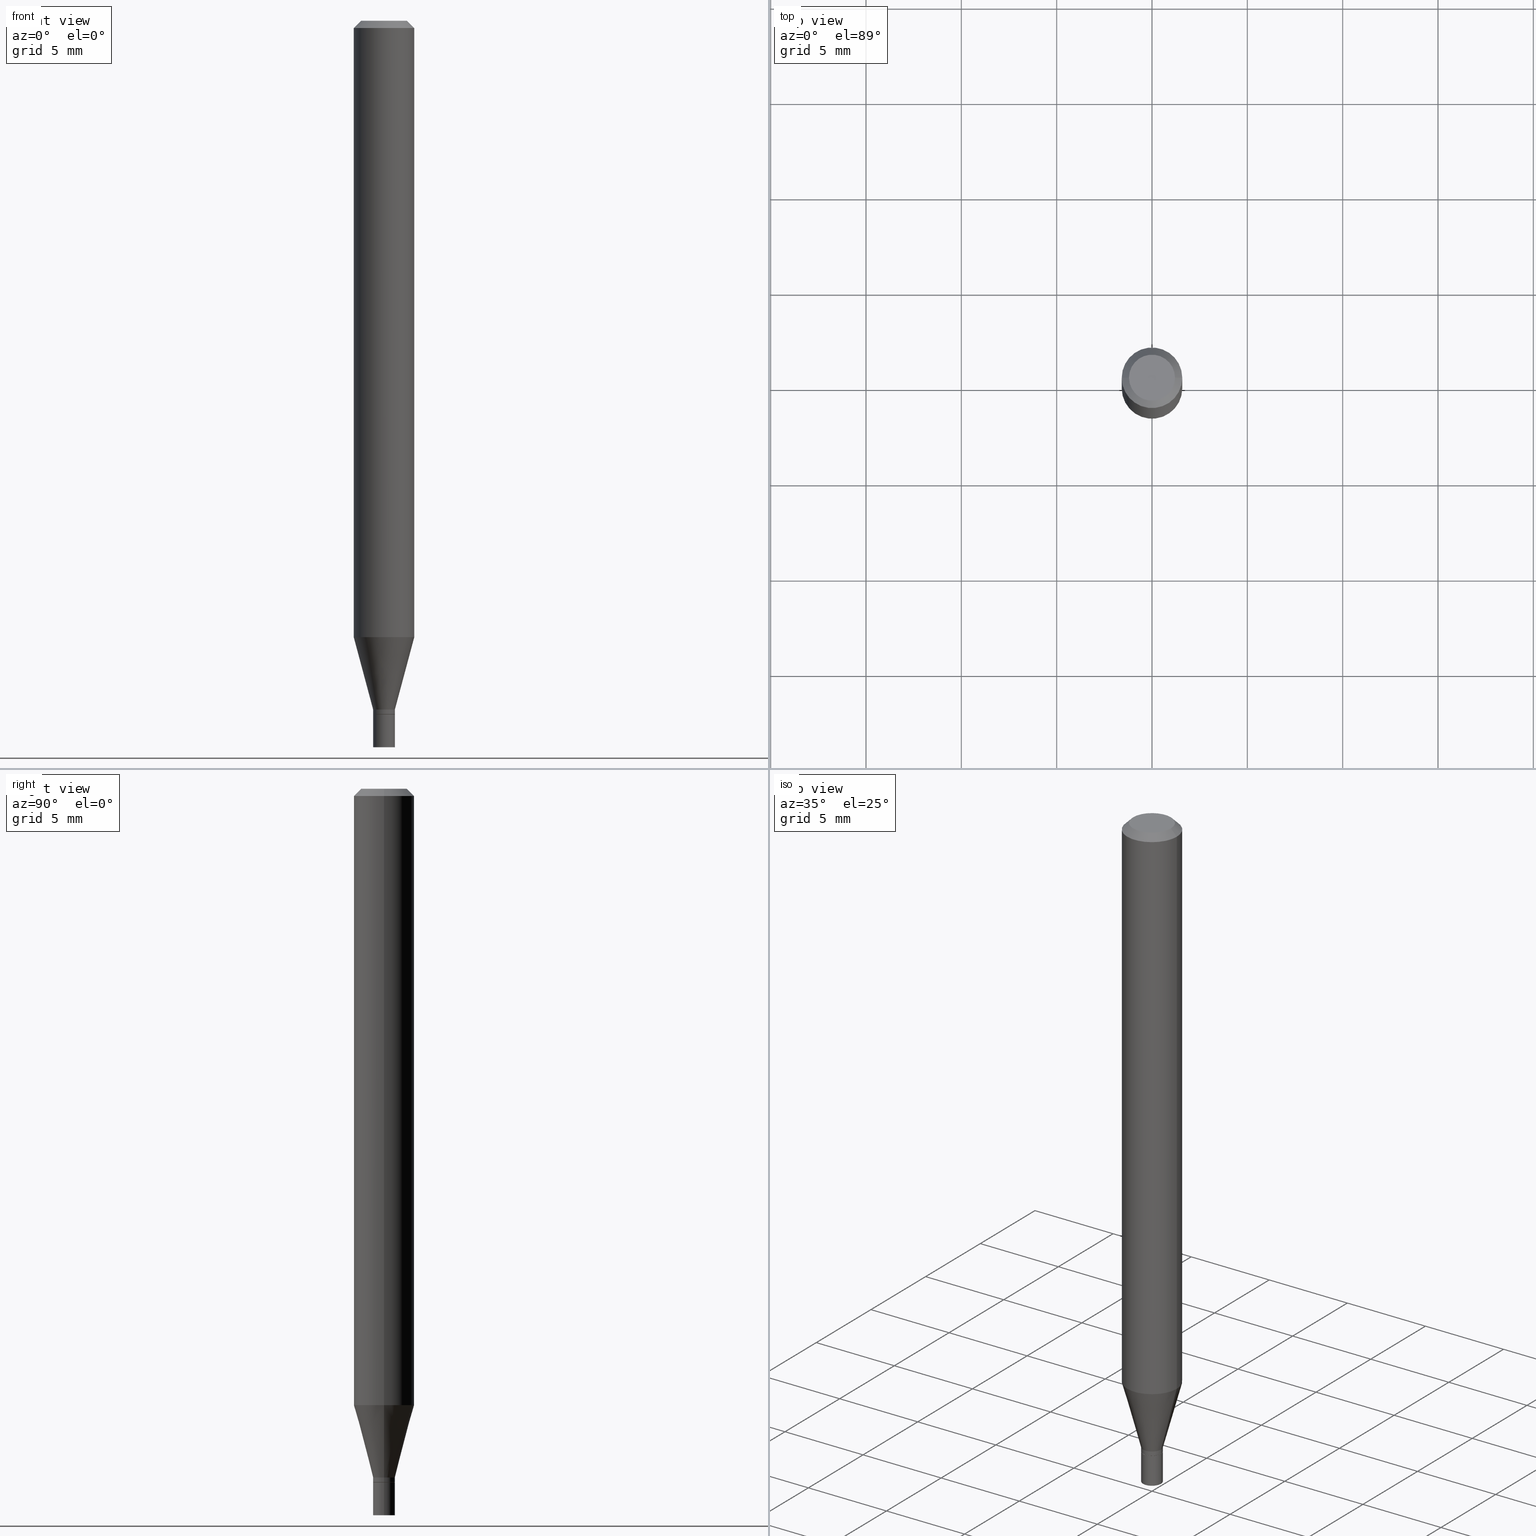
[diagram: canonical four-view strip — front | top / right | iso, engineering-drawing reading convention]
A machine part, canonical four-view strip (front | top / right | iso — engineering-drawing reading convention). The complete STEP part file that produces these views, byte-faithful:
ISO-10303-21;
HEADER;
FILE_DESCRIPTION (( 'STEP AP203' ),
    '1' );
FILE_NAME ('00341.STEP',
    '2024-03-19T21:00:36',
    ( '' ),
    ( '' ),
    'SwSTEP 2.0',
    'SolidWorks 2023',
    '' );
FILE_SCHEMA (( 'CONFIG_CONTROL_DESIGN' ));
ENDSEC;

DATA;
#1 = PERSON_AND_ORGANIZATION ( #202, #423 ) ;
#2 = CC_DESIGN_PERSON_AND_ORGANIZATION_ASSIGNMENT ( #274, #88, ( #276 ) ) ;
#3 = PERSON_AND_ORGANIZATION_ROLE ( 'design_supplier' ) ;
#4 = CARTESIAN_POINT ( 'NONE',  ( -0.02249999999999999917, -4.958639527198029700E-15, -1.500000000000000222 ) ) ;
#5 = FACE_OUTER_BOUND ( 'NONE', #369, .T. ) ;
#6 = VERTEX_POINT ( 'NONE', #66 ) ;
#7 = VECTOR ( 'NONE', #227, 39.37007874015748143 ) ;
#8 = EDGE_CURVE ( 'NONE', #273, #6, #182, .T. ) ;
#9 = VERTEX_POINT ( 'NONE', #458 ) ;
#10 = VERTEX_POINT ( 'NONE', #282 ) ;
#11 = CARTESIAN_POINT ( 'NONE',  ( -0.02249999999999992284, -4.805014348288931075E-15, -1.421999999999999931 ) ) ;
#12 = ORIENTED_EDGE ( 'NONE', *, *, #419, .T. ) ;
#13 = DIRECTION ( 'NONE',  ( 0.7071067811865656694, -2.468850131082446387E-15, 0.7071067811865294761 ) ) ;
#14 = ORIENTED_EDGE ( 'NONE', *, *, #443, .F. ) ;
#15 = ORIENTED_EDGE ( 'NONE', *, *, #443, .T. ) ;
#16 = CYLINDRICAL_SURFACE ( 'NONE', #307, 0.06250000000000000000 ) ;
#17 = ADVANCED_FACE ( 'NONE', ( #174 ), #35, .T. ) ;
#18 = DIRECTION ( 'NONE',  ( 1.000000000000000000, -6.982962677686248567E-15, 0.000000000000000000 ) ) ;
#19 = LOCAL_TIME ( 17, 0, 36.00000000000000000, #171 ) ;
#20 = CARTESIAN_POINT ( 'NONE',  ( 1.571166602479759968E-16, 0.02249999999999499969, -1.432000000000000162 ) ) ;
#21 = FACE_OUTER_BOUND ( 'NONE', #153, .T. ) ;
#22 = EDGE_LOOP ( 'NONE', ( #89, #184, #181, #428 ) ) ;
#23 = DIRECTION ( 'NONE',  ( 1.000000000000000000, -6.982962677686267499E-15, 4.852736867747366768E-29 ) ) ;
#24 = AXIS2_PLACEMENT_3D ( 'NONE', #170, #67, #221 ) ;
#25 = CIRCLE ( 'NONE', #278, 0.02249999999999999917 ) ;
#26 = DIRECTION ( 'NONE',  ( -2.438088387897960049E-29, 3.491481338843145188E-15, 1.000000000000000000 ) ) ;
#27 = DIRECTION ( 'NONE',  ( -2.445468806185136597E-29, 3.491481338843145583E-15, 1.000000000000000000 ) ) ;
#28 = ADVANCED_FACE ( 'NONE', ( #325 ), #56, .T. ) ;
#29 = LOCAL_TIME ( 17, 0, 36.00000000000000000, #391 ) ;
#30 = DIRECTION ( 'NONE',  ( 1.000000000000000000, -6.982962677686248567E-15, 0.000000000000000000 ) ) ;
#31 = EDGE_CURVE ( 'NONE', #81, #10, #341, .T. ) ;
#32 = DIRECTION ( 'NONE',  ( -2.445468806185136877E-29, 3.491481338843145188E-15, 1.000000000000000000 ) ) ;
#33 = DIRECTION ( 'NONE',  ( 1.000000000000000000, -6.982962677686248567E-15, 0.000000000000000000 ) ) ;
#34 = DIRECTION ( 'NONE',  ( -2.445468806185136877E-29, 3.491481338843145188E-15, 1.000000000000000000 ) ) ;
#35 = CYLINDRICAL_SURFACE ( 'NONE', #315, 0.02249999999999999917 ) ;
#36 = EDGE_CURVE ( 'NONE', #273, #313, #393, .T. ) ;
#37 = VECTOR ( 'NONE', #152, 39.37007874015748143 ) ;
#38 = CARTESIAN_POINT ( 'NONE',  ( 0.000000000000000000, 0.000000000000000000, 0.000000000000000000 ) ) ;
#39 = EDGE_CURVE ( 'NONE', #72, #48, #222, .T. ) ;
#40 = ORIENTED_EDGE ( 'NONE', *, *, #291, .F. ) ;
#41 = DIRECTION ( 'NONE',  ( -2.445468806185136597E-29, 3.491481338843145583E-15, 1.000000000000000000 ) ) ;
#42 = AXIS2_PLACEMENT_3D ( 'NONE', #216, #130, #33 ) ;
#43 = AXIS2_PLACEMENT_3D ( 'NONE', #366, #51, #195 ) ;
#44 = DIRECTION ( 'NONE',  ( -2.445468806185136597E-29, 3.491481338843145583E-15, 1.000000000000000000 ) ) ;
#45 = CONICAL_SURFACE ( 'NONE', #317, 0.06250000000000000000, 0.7853981633974405074 ) ;
#46 = DIRECTION ( 'NONE',  ( -2.445468806185136597E-29, 3.491481338843145583E-15, 1.000000000000000000 ) ) ;
#47 = CARTESIAN_POINT ( 'NONE',  ( 0.02199999999999999872, -5.153426456132482850E-15, -1.432000000000000162 ) ) ;
#48 = VERTEX_POINT ( 'NONE', #70 ) ;
#49 = ORIENTED_EDGE ( 'NONE', *, *, #403, .F. ) ;
#50 = LINE ( 'NONE', #47, #79 ) ;
#51 = DIRECTION ( 'NONE',  ( -2.445468806185136597E-29, 3.491481338843145583E-15, 1.000000000000000000 ) ) ;
#52 = LINE ( 'NONE', #197, #255 ) ;
#53 = EDGE_LOOP ( 'NONE', ( #297, #15, #440, #245 ) ) ;
#54 = ADVANCED_FACE ( 'NONE', ( #5 ), #145, .T. ) ;
#55 = DIRECTION ( 'NONE',  ( 1.000000000000000000, -6.982962677686265922E-15, 4.876176775795935793E-29 ) ) ;
#56 = CONICAL_SURFACE ( 'NONE', #177, 0.02199999999999999872, 0.7853981633974739252 ) ;
#57 =( GEOMETRIC_REPRESENTATION_CONTEXT ( 3 ) GLOBAL_UNCERTAINTY_ASSIGNED_CONTEXT ( ( #108 ) ) GLOBAL_UNIT_ASSIGNED_CONTEXT ( ( #217, #275, #141 ) ) REPRESENTATION_CONTEXT ( 'NONE', 'WORKASPACE' ) );
#58 = ORIENTED_EDGE ( 'NONE', *, *, #119, .F. ) ;
#59 = EDGE_CURVE ( 'NONE', #313, #48, #435, .T. ) ;
#60 = DIRECTION ( 'NONE',  ( -2.445468806185136877E-29, 3.491481338843145188E-15, 1.000000000000000000 ) ) ;
#61 = APPLICATION_CONTEXT ( 'configuration controlled 3d designs of mechanical parts and assemblies' ) ;
#62 = CARTESIAN_POINT ( 'NONE',  ( 0.02249999999999999917, -1.571166602479409911E-16, 1.097139774554085483E-30 ) ) ;
#63 = CONICAL_SURFACE ( 'NONE', #439, 0.02249999999999992284, 0.2617993877991492413 ) ;
#64 = DATE_TIME_ROLE ( 'classification_date' ) ;
#65 = AXIS2_PLACEMENT_3D ( 'NONE', #189, #362, #116 ) ;
#66 = CARTESIAN_POINT ( 'NONE',  ( 0.02249999999999992284, -5.122003124082893419E-15, -1.421999999999999931 ) ) ;
#67 = DIRECTION ( 'NONE',  ( 2.445468806185136597E-29, -3.491481338843145583E-15, -1.000000000000000000 ) ) ;
#68 = CLOSED_SHELL ( 'NONE', ( #17, #211, #155, #166 ) ) ;
#69 = DIRECTION ( 'NONE',  ( -2.438088387897960049E-29, 3.491481338843145188E-15, 1.000000000000000000 ) ) ;
#70 = CARTESIAN_POINT ( 'NONE',  ( -0.06250000000000000000, -1.803932417103912611E-15, -0.01499999999999999944 ) ) ;
#71 = ADVANCED_FACE ( 'NONE', ( #106 ), #378, .T. ) ;
#72 = VERTEX_POINT ( 'NONE', #316 ) ;
#73 = DIRECTION ( 'NONE',  ( -2.445468806185136597E-29, 3.491481338843145583E-15, 1.000000000000000000 ) ) ;
#74 = CIRCLE ( 'NONE', #268, 0.04749999999999999362 ) ;
#75 = EDGE_CURVE ( 'NONE', #9, #273, #352, .T. ) ;
#76 = ORIENTED_EDGE ( 'NONE', *, *, #403, .T. ) ;
#77 = LINE ( 'NONE', #234, #230 ) ;
#78 = ORIENTED_EDGE ( 'NONE', *, *, #330, .T. ) ;
#79 = VECTOR ( 'NONE', #13, 39.37007874015748143 ) ;
#80 = CARTESIAN_POINT ( 'NONE',  ( 3.501911330457115844E-29, -4.999801277223385014E-15, -1.432000000000000162 ) ) ;
#81 = VERTEX_POINT ( 'NONE', #133 ) ;
#82 = PLANE ( 'NONE',  #161 ) ;
#83 = ORIENTED_EDGE ( 'NONE', *, *, #198, .T. ) ;
#84 = DIRECTION ( 'NONE',  ( 1.000000000000000000, -6.982962677686267499E-15, 4.852736867747366768E-29 ) ) ;
#85 = DIRECTION ( 'NONE',  ( -2.445468806185136597E-29, 3.491481338843145583E-15, 1.000000000000000000 ) ) ;
#86 = ORIENTED_EDGE ( 'NONE', *, *, #329, .F. ) ;
#87 = LINE ( 'NONE', #237, #434 ) ;
#88 = PERSON_AND_ORGANIZATION_ROLE ( 'design_owner' ) ;
#89 = ORIENTED_EDGE ( 'NONE', *, *, #260, .F. ) ;
#90 = LOCAL_TIME ( 17, 0, 36.00000000000000000, #137 ) ;
#91 = CC_DESIGN_DATE_AND_TIME_ASSIGNMENT ( #319, #64, ( #290 ) ) ;
#92 = DIRECTION ( 'NONE',  ( -2.445468806185136597E-29, 3.491481338843145583E-15, 1.000000000000000000 ) ) ;
#93 = DIRECTION ( 'NONE',  ( -2.445468806185136597E-29, 3.491481338843145583E-15, 1.000000000000000000 ) ) ;
#94 = ADVANCED_FACE ( 'NONE', ( #292 ), #140, .T. ) ;
#95 = AXIS2_PLACEMENT_3D ( 'NONE', #156, #73, #304 ) ;
#96 = DIRECTION ( 'NONE',  ( -2.445468806185136597E-29, 3.491481338843145583E-15, 1.000000000000000000 ) ) ;
#97 = SECURITY_CLASSIFICATION_LEVEL ( 'unclassified' ) ;
#98 = CARTESIAN_POINT ( 'NONE',  ( 0.06250000000000000000, -4.888073874380388472E-16, -0.01499999999999999944 ) ) ;
#99 = EDGE_LOOP ( 'NONE', ( #120, #115, #422, #302 ) ) ;
#100 = APPROVAL_DATE_TIME ( #430, #394 ) ;
#101 = VERTEX_POINT ( 'NONE', #98 ) ;
#102 = AXIS2_PLACEMENT_3D ( 'NONE', #336, #242, #372 ) ;
#103 = APPROVAL_ROLE ( '' ) ;
#104 = ADVANCED_FACE ( 'NONE', ( #107 ), #63, .T. ) ;
#105 = DESIGN_CONTEXT ( 'detailed design', #160, 'design' ) ;
#106 = FACE_OUTER_BOUND ( 'NONE', #363, .T. ) ;
#107 = FACE_OUTER_BOUND ( 'NONE', #296, .T. ) ;
#108 = UNCERTAINTY_MEASURE_WITH_UNIT (LENGTH_MEASURE( 1.000000000000000082E-05 ), #217, 'distance_accuracy_value', 'NONE');
#109 = CIRCLE ( 'NONE', #183, 0.02249999999999999917 ) ;
#110 = CARTESIAN_POINT ( 'NONE',  ( 0.02249999999999999917, -5.394338668512659809E-15, -1.500000000000000222 ) ) ;
#111 = AXIS2_PLACEMENT_3D ( 'NONE', #229, #154, #84 ) ;
#112 = CARTESIAN_POINT ( 'NONE',  ( 0.02249999999999999917, -5.156917937471325857E-15, -1.432000000000000162 ) ) ;
#113 = DIRECTION ( 'NONE',  ( 2.438088387897960049E-29, -3.491481338843145188E-15, -1.000000000000000000 ) ) ;
#114 = DIRECTION ( 'NONE',  ( 1.000000000000000000, -6.982962677686245411E-15, 0.000000000000000000 ) ) ;
#115 = ORIENTED_EDGE ( 'NONE', *, *, #249, .T. ) ;
#116 = DIRECTION ( 'NONE',  ( 1.000000000000000000, 0.000000000000000000, 0.000000000000000000 ) ) ;
#117 = DIRECTION ( 'NONE',  ( -1.000000000000000000, 6.982962677686266711E-15, 0.000000000000000000 ) ) ;
#118 = AXIS2_PLACEMENT_3D ( 'NONE', #416, #92, #379 ) ;
#119 = EDGE_CURVE ( 'NONE', #266, #331, #384, .T. ) ;
#120 = ORIENTED_EDGE ( 'NONE', *, *, #75, .F. ) ;
#121 = APPROVAL_PERSON_ORGANIZATION ( #318, #394, #210 ) ;
#122 = DIRECTION ( 'NONE',  ( -2.445468806185136597E-29, 3.491481338843145583E-15, 1.000000000000000000 ) ) ;
#123 = ORIENTED_EDGE ( 'NONE', *, *, #415, .T. ) ;
#124 = EDGE_CURVE ( 'NONE', #6, #273, #360, .T. ) ;
#125 = EDGE_LOOP ( 'NONE', ( #86, #209 ) ) ;
#126 = AXIS2_PLACEMENT_3D ( 'NONE', #262, #69, #223 ) ;
#127 =( LENGTH_UNIT ( ) NAMED_UNIT ( * ) SI_UNIT ( $, .METRE. ) );
#128 = FACE_OUTER_BOUND ( 'NONE', #146, .T. ) ;
#129 = CALENDAR_DATE ( 2024, 19, 3 ) ;
#130 = DIRECTION ( 'NONE',  ( -2.445468806185136597E-29, 3.491481338843145583E-15, 1.000000000000000000 ) ) ;
#131 = PERSON_AND_ORGANIZATION_ROLE ( 'creator' ) ;
#132 = CIRCLE ( 'NONE', #207, 0.06250000000000000000 ) ;
#133 = CARTESIAN_POINT ( 'NONE',  ( -0.02199999999999999872, -4.840832648182052422E-15, -1.432000000000000162 ) ) ;
#134 = APPROVAL_DATE_TIME ( #347, #351 ) ;
#135 = MECHANICAL_CONTEXT ( 'NONE', #61, 'mechanical' ) ;
#136 = CARTESIAN_POINT ( 'NONE',  ( -0.02249999999999992284, 1.598721155460219936E-16, -1.106760395307350101E-30 ) ) ;
#137 = COORDINATED_UNIVERSAL_TIME_OFFSET ( 5, 0, .BEHIND. ) ;
#138 = CARTESIAN_POINT ( 'NONE',  ( -0.02249999999999992284, -4.402298086132085720E-15, -1.421999999999999931 ) ) ;
#139 = DIRECTION ( 'NONE',  ( 1.000000000000000000, -6.982962677686265922E-15, 4.876176775795935793E-29 ) ) ;
#140 = CONICAL_SURFACE ( 'NONE', #147, 0.02199999999999999872, 0.7853981633974739252 ) ;
#141 =( NAMED_UNIT ( * ) SI_UNIT ( $, .STERADIAN. ) SOLID_ANGLE_UNIT ( ) );
#142 = AXIS2_PLACEMENT_3D ( 'NONE', #80, #122, #448 ) ;
#143 = FACE_OUTER_BOUND ( 'NONE', #125, .T. ) ;
#144 = ORIENTED_EDGE ( 'NONE', *, *, #256, .T. ) ;
#145 = CYLINDRICAL_SURFACE ( 'NONE', #322, 0.02249999999999992284 ) ;
#146 = EDGE_LOOP ( 'NONE', ( #218, #457, #226, #309 ) ) ;
#147 = AXIS2_PLACEMENT_3D ( 'NONE', #285, #436, #427 ) ;
#148 = DIRECTION ( 'NONE',  ( 1.000000000000000000, -6.982962677686245411E-15, 0.000000000000000000 ) ) ;
#149 = ADVANCED_FACE ( 'NONE', ( #399 ), #82, .F. ) ;
#150 = EDGE_LOOP ( 'NONE', ( #382, #299 ) ) ;
#151 = ORIENTED_EDGE ( 'NONE', *, *, #438, .F. ) ;
#152 = DIRECTION ( 'NONE',  ( -0.2588190451025205729, 5.211531920934545520E-15, 0.9659258262890684232 ) ) ;
#153 = EDGE_LOOP ( 'NONE', ( #402, #144, #258, #340 ) ) ;
#154 = DIRECTION ( 'NONE',  ( -2.445468806185136597E-29, 3.491481338843145583E-15, 1.000000000000000000 ) ) ;
#155 = ADVANCED_FACE ( 'NONE', ( #295 ), #233, .T. ) ;
#156 = CARTESIAN_POINT ( 'NONE',  ( 3.668203209277704895E-29, -5.237222008264718177E-15, -1.500000000000000222 ) ) ;
#157 = AXIS2_PLACEMENT_3D ( 'NONE', #420, #344, #417 ) ;
#158 = PERSON_AND_ORGANIZATION ( #202, #423 ) ;
#159 = VERTEX_POINT ( 'NONE', #305 ) ;
#160 = APPLICATION_CONTEXT ( 'configuration controlled 3d designs of mechanical parts and assemblies' ) ;
#161 = AXIS2_PLACEMENT_3D ( 'NONE', #224, #113, #326 ) ;
#162 = CYLINDRICAL_SURFACE ( 'NONE', #157, 0.06250000000000000000 ) ;
#163 = DIRECTION ( 'NONE',  ( -2.445468806185136597E-29, 3.491481338843145583E-15, 1.000000000000000000 ) ) ;
#164 = APPROVAL_ROLE ( '' ) ;
#165 = CARTESIAN_POINT ( 'NONE',  ( 0.06250000000000000000, -4.880106201180694651E-15, -1.272717967697244434 ) ) ;
#166 = ADVANCED_FACE ( 'NONE', ( #449 ), #199, .F. ) ;
#167 = APPLICATION_PROTOCOL_DEFINITION ( 'international standard', 'config_control_design', 1994, #61 ) ;
#168 = CARTESIAN_POINT ( 'NONE',  ( 3.668203209277705088E-31, -5.237222008264718399E-17, -0.01499999999999999944 ) ) ;
#169 = PERSON_AND_ORGANIZATION_ROLE ( 'classification_officer' ) ;
#170 = CARTESIAN_POINT ( 'NONE',  ( 3.668203209277705088E-31, -5.237222008264718399E-17, -0.01499999999999999944 ) ) ;
#171 = COORDINATED_UNIVERSAL_TIME_OFFSET ( 5, 0, .BEHIND. ) ;
#172 = EDGE_CURVE ( 'NONE', #462, #331, #109, .T. ) ;
#173 = VERTEX_POINT ( 'NONE', #165 ) ;
#174 = FACE_OUTER_BOUND ( 'NONE', #453, .T. ) ;
#175 = LINE ( 'NONE', #280, #186 ) ;
#176 = APPROVAL_DATE_TIME ( #250, #390 ) ;
#177 = AXIS2_PLACEMENT_3D ( 'NONE', #179, #293, #148 ) ;
#178 = LOCAL_TIME ( 17, 0, 36.00000000000000000, #353 ) ;
#179 = CARTESIAN_POINT ( 'NONE',  ( 3.501911330457115844E-29, -4.999801277223385014E-15, -1.432000000000000162 ) ) ;
#180 = ORIENTED_EDGE ( 'NONE', *, *, #249, .F. ) ;
#181 = ORIENTED_EDGE ( 'NONE', *, *, #119, .T. ) ;
#182 = CIRCLE ( 'NONE', #42, 0.02249999999999992284 ) ;
#183 = AXIS2_PLACEMENT_3D ( 'NONE', #371, #93, #375 ) ;
#184 = ORIENTED_EDGE ( 'NONE', *, *, #438, .T. ) ;
#185 = CIRCLE ( 'NONE', #381, 0.02249999999999992284 ) ;
#186 = VECTOR ( 'NONE', #60, 39.37007874015748143 ) ;
#187 = ORIENTED_EDGE ( 'NONE', *, *, #188, .F. ) ;
#188 = EDGE_CURVE ( 'NONE', #159, #72, #74, .T. ) ;
#189 = CARTESIAN_POINT ( 'NONE',  ( 0.000000000000000000, 0.000000000000000000, 0.000000000000000000 ) ) ;
#190 = FACE_OUTER_BOUND ( 'NONE', #236, .T. ) ;
#191 = ORIENTED_EDGE ( 'NONE', *, *, #357, .F. ) ;
#192 = EDGE_LOOP ( 'NONE', ( #123, #398, #49, #40 ) ) ;
#193 = CARTESIAN_POINT ( 'NONE',  ( 0.02249999999999992284, -5.155172196801903565E-15, -1.431500000000000217 ) ) ;
#194 = CARTESIAN_POINT ( 'NONE',  ( 0.06250000000000000000, -4.364351673553916694E-16, 3.047610484872459871E-30 ) ) ;
#195 = DIRECTION ( 'NONE',  ( 1.000000000000000000, -6.982962677686266711E-15, 4.876176775795935793E-29 ) ) ;
#196 = DIRECTION ( 'NONE',  ( -2.445468806185136597E-29, 3.491481338843145583E-15, 1.000000000000000000 ) ) ;
#197 = CARTESIAN_POINT ( 'NONE',  ( -0.02199999999999999872, -4.843481875356163623E-15, -1.432000000000000162 ) ) ;
#198 = EDGE_CURVE ( 'NONE', #48, #101, #414, .T. ) ;
#199 = PLANE ( 'NONE',  #446 ) ;
#200 = DIRECTION ( 'NONE',  ( 1.000000000000000000, -6.982962677686248567E-15, 0.000000000000000000 ) ) ;
#201 = ORIENTED_EDGE ( 'NONE', *, *, #31, .T. ) ;
#202 = PERSON ( 'UNSPECIFIED', 'UNSPECIFIED', 'UNSPECIFIED', ('UNSPECIFIED'), ('UNSPECIFIED'), ('UNSPECIFIED') ) ;
#203 = APPROVAL_PERSON_ORGANIZATION ( #214, #390, #103 ) ;
#204 = CARTESIAN_POINT ( 'NONE',  ( -5.723698685194923234E-45, 8.171924785126947293E-31, 2.340532281875119882E-16 ) ) ;
#205 = AXIS2_PLACEMENT_3D ( 'NONE', #431, #349, #30 ) ;
#206 = CC_DESIGN_PERSON_AND_ORGANIZATION_ASSIGNMENT ( #346, #169, ( #290 ) ) ;
#207 = AXIS2_PLACEMENT_3D ( 'NONE', #247, #96, #464 ) ;
#208 = FACE_OUTER_BOUND ( 'NONE', #248, .T. ) ;
#209 = ORIENTED_EDGE ( 'NONE', *, *, #31, .F. ) ;
#210 = APPROVAL_ROLE ( '' ) ;
#211 = ADVANCED_FACE ( 'NONE', ( #208 ), #244, .F. ) ;
#212 = CONICAL_SURFACE ( 'NONE', #303, 0.02249999999999992284, 0.2617993877991492413 ) ;
#213 = DIRECTION ( 'NONE',  ( -2.445468806185136877E-29, 3.491481338843145188E-15, 1.000000000000000000 ) ) ;
#214 = PERSON_AND_ORGANIZATION ( #202, #423 ) ;
#215 = CIRCLE ( 'NONE', #111, 0.04749999999999999362 ) ;
#216 = CARTESIAN_POINT ( 'NONE',  ( 3.477456642395264859E-29, -4.964886463834953365E-15, -1.421999999999999931 ) ) ;
#217 =( CONVERSION_BASED_UNIT ( 'INCH', #277 ) LENGTH_UNIT ( ) NAMED_UNIT ( #380 ) );
#218 = ORIENTED_EDGE ( 'NONE', *, *, #36, .F. ) ;
#219 = SHAPE_DEFINITION_REPRESENTATION ( #406, #263 ) ;
#220 = DIRECTION ( 'NONE',  ( -2.445468806185136597E-29, 3.491481338843145583E-15, 1.000000000000000000 ) ) ;
#221 = DIRECTION ( 'NONE',  ( -1.000000000000000000, 6.982962677686266711E-15, 0.000000000000000000 ) ) ;
#222 = LINE ( 'NONE', #356, #348 ) ;
#223 = DIRECTION ( 'NONE',  ( 1.000000000000000000, -6.982962677686265922E-15, 4.876176775795935793E-29 ) ) ;
#224 = CARTESIAN_POINT ( 'NONE',  ( 3.316907271900976096E-16, 0.04749999999999999362, -4.881874950129340235E-17 ) ) ;
#225 = DIRECTION ( 'NONE',  ( -2.445468806185136597E-29, 3.491481338843145583E-15, 1.000000000000000000 ) ) ;
#226 = ORIENTED_EDGE ( 'NONE', *, *, #357, .T. ) ;
#227 = DIRECTION ( 'NONE',  ( -2.445468806185136877E-29, 3.491481338843145188E-15, 1.000000000000000000 ) ) ;
#228 = ADVANCED_FACE ( 'NONE', ( #128 ), #212, .T. ) ;
#229 = CARTESIAN_POINT ( 'NONE',  ( -5.723698685194923234E-45, 8.171924785126947293E-31, 2.340532281875119882E-16 ) ) ;
#230 = VECTOR ( 'NONE', #231, 39.37007874015748143 ) ;
#231 = DIRECTION ( 'NONE',  ( 0.7071067811865420216, -7.319954787623237113E-15, -0.7071067811865530128 ) ) ;
#232 = CARTESIAN_POINT ( 'NONE',  ( 0.000000000000000000, 0.000000000000000000, 0.000000000000000000 ) ) ;
#233 = CYLINDRICAL_SURFACE ( 'NONE', #43, 0.02249999999999999917 ) ;
#234 = CARTESIAN_POINT ( 'NONE',  ( 0.06250000000000000000, -4.811533449433679005E-16, -0.01499999999999999944 ) ) ;
#235 = CC_DESIGN_PERSON_AND_ORGANIZATION_ASSIGNMENT ( #1, #131, ( #442 ) ) ;
#236 = EDGE_LOOP ( 'NONE', ( #187, #373, #76, #359 ) ) ;
#237 = CARTESIAN_POINT ( 'NONE',  ( 0.02249999999999992284, -5.122003124082893419E-15, -1.421999999999999931 ) ) ;
#238 = CARTESIAN_POINT ( 'NONE',  ( 3.500688596054023603E-29, -4.998055536553963510E-15, -1.431500000000000217 ) ) ;
#239 = ORIENTED_EDGE ( 'NONE', *, *, #419, .F. ) ;
#240 = DIRECTION ( 'NONE',  ( 1.000000000000000000, -6.982962677686269077E-15, 0.000000000000000000 ) ) ;
#241 = CIRCLE ( 'NONE', #102, 0.06250000000000000000 ) ;
#242 = DIRECTION ( 'NONE',  ( -2.445468806185136597E-29, 3.491481338843145583E-15, 1.000000000000000000 ) ) ;
#243 = ORIENTED_EDGE ( 'NONE', *, *, #39, .T. ) ;
#244 = PLANE ( 'NONE',  #310 ) ;
#245 = ORIENTED_EDGE ( 'NONE', *, *, #330, .F. ) ;
#246 = CIRCLE ( 'NONE', #370, 0.02249999999999992284 ) ;
#247 = CARTESIAN_POINT ( 'NONE',  ( 3.112392089074953397E-29, -4.443671033825302981E-15, -1.272717967697244434 ) ) ;
#248 = EDGE_LOOP ( 'NONE', ( #333, #151 ) ) ;
#249 = EDGE_CURVE ( 'NONE', #9, #364, #246, .T. ) ;
#250 = DATE_AND_TIME ( #284, #29 ) ;
#251 = DIRECTION ( 'NONE',  ( 1.000000000000000000, -6.982962677686248567E-15, 0.000000000000000000 ) ) ;
#252 = CALENDAR_DATE ( 2024, 19, 3 ) ;
#253 = VECTOR ( 'NONE', #334, 39.37007874015748143 ) ;
#254 = ORIENTED_EDGE ( 'NONE', *, *, #338, .T. ) ;
#255 = VECTOR ( 'NONE', #335, 39.37007874015748143 ) ;
#256 = EDGE_CURVE ( 'NONE', #313, #173, #241, .T. ) ;
#257 = CARTESIAN_POINT ( 'NONE',  ( -0.06250000000000000000, 4.440892098500626162E-16, -3.074334431409316114E-30 ) ) ;
#258 = ORIENTED_EDGE ( 'NONE', *, *, #291, .T. ) ;
#259 = COORDINATED_UNIVERSAL_TIME_OFFSET ( 5, 0, .BEHIND. ) ;
#260 = EDGE_CURVE ( 'NONE', #267, #462, #441, .T. ) ;
#261 = CARTESIAN_POINT ( 'NONE',  ( 3.501911330457115844E-29, -4.999801277223385014E-15, -1.432000000000000162 ) ) ;
#262 = CARTESIAN_POINT ( 'NONE',  ( 3.501911330457115844E-29, -4.999801277223385014E-15, -1.432000000000000162 ) ) ;
#263 = ADVANCED_BREP_SHAPE_REPRESENTATION ( '00341', ( #429, #279, #65 ), #57 ) ;
#264 = CARTESIAN_POINT ( 'NONE',  ( -0.02249999999999999917, 1.598721155460225359E-16, -1.106760395307353780E-30 ) ) ;
#265 = CARTESIAN_POINT ( 'NONE',  ( 3.668203209277705088E-31, -5.237222008264718399E-17, -0.01499999999999999944 ) ) ;
#266 = VERTEX_POINT ( 'NONE', #110 ) ;
#267 = VERTEX_POINT ( 'NONE', #4 ) ;
#268 = AXIS2_PLACEMENT_3D ( 'NONE', #204, #343, #23 ) ;
#269 = FACE_OUTER_BOUND ( 'NONE', #192, .T. ) ;
#270 = ADVANCED_FACE ( 'NONE', ( #350 ), #320, .T. ) ;
#271 = ORIENTED_EDGE ( 'NONE', *, *, #124, .F. ) ;
#272 = AXIS2_PLACEMENT_3D ( 'NONE', #168, #163, #421 ) ;
#273 = VERTEX_POINT ( 'NONE', #138 ) ;
#274 = PERSON_AND_ORGANIZATION ( #202, #423 ) ;
#275 =( NAMED_UNIT ( * ) PLANE_ANGLE_UNIT ( ) SI_UNIT ( $, .RADIAN. ) );
#276 = PRODUCT ( '00341', '00341', '', ( #135 ) ) ;
#277 = LENGTH_MEASURE_WITH_UNIT ( LENGTH_MEASURE( 0.02539999999999999897 ), #127 );
#278 = AXIS2_PLACEMENT_3D ( 'NONE', #367, #298, #240 ) ;
#279 = MANIFOLD_SOLID_BREP ( 'Body-Move/Copy2[2]', #289 ) ;
#280 = CARTESIAN_POINT ( 'NONE',  ( 0.02249999999999992284, -1.571166602479404488E-16, 1.097139774554081805E-30 ) ) ;
#281 = ADVANCED_FACE ( 'NONE', ( #143 ), #437, .F. ) ;
#282 = CARTESIAN_POINT ( 'NONE',  ( 0.02199999999999999872, -5.153426456132482850E-15, -1.432000000000000162 ) ) ;
#283 = LOCAL_TIME ( 17, 0, 36.00000000000000000, #259 ) ;
#284 = CALENDAR_DATE ( 2024, 19, 3 ) ;
#285 = CARTESIAN_POINT ( 'NONE',  ( 3.501911330457115844E-29, -4.999801277223385014E-15, -1.432000000000000162 ) ) ;
#286 = APPROVAL_STATUS ( 'not_yet_approved' ) ;
#287 = CARTESIAN_POINT ( 'NONE',  ( 3.477456642395264859E-29, -4.964886463834953365E-15, -1.421999999999999931 ) ) ;
#288 = DATE_AND_TIME ( #383, #283 ) ;
#289 = CLOSED_SHELL ( 'NONE', ( #54, #94, #301, #314, #104, #228, #385, #71, #149, #281, #28, #270 ) ) ;
#290 = SECURITY_CLASSIFICATION ( '', '', #97 ) ;
#291 = EDGE_CURVE ( 'NONE', #173, #101, #445, .T. ) ;
#292 = FACE_OUTER_BOUND ( 'NONE', #53, .T. ) ;
#293 = DIRECTION ( 'NONE',  ( -2.445468806185136597E-29, 3.491481338843145583E-15, 1.000000000000000000 ) ) ;
#294 = VECTOR ( 'NONE', #32, 39.37007874015748143 ) ;
#295 = FACE_OUTER_BOUND ( 'NONE', #22, .T. ) ;
#296 = EDGE_LOOP ( 'NONE', ( #412, #306, #460, #191 ) ) ;
#297 = ORIENTED_EDGE ( 'NONE', *, *, #329, .T. ) ;
#298 = DIRECTION ( 'NONE',  ( -2.445468806185136597E-29, 3.491481338843145583E-15, 1.000000000000000000 ) ) ;
#299 = ORIENTED_EDGE ( 'NONE', *, *, #188, .T. ) ;
#300 = DIRECTION ( 'NONE',  ( 2.445468806185136597E-29, -3.491481338843145583E-15, -1.000000000000000000 ) ) ;
#301 = ADVANCED_FACE ( 'NONE', ( #190 ), #45, .T. ) ;
#302 = ORIENTED_EDGE ( 'NONE', *, *, #8, .F. ) ;
#303 = AXIS2_PLACEMENT_3D ( 'NONE', #409, #85, #18 ) ;
#304 = DIRECTION ( 'NONE',  ( 1.000000000000000000, -6.982962677686269077E-15, 0.000000000000000000 ) ) ;
#305 = CARTESIAN_POINT ( 'NONE',  ( 0.04749999999999999362, -4.035134999187574186E-16, 2.340532281875146013E-16 ) ) ;
#306 = ORIENTED_EDGE ( 'NONE', *, *, #36, .T. ) ;
#307 = AXIS2_PLACEMENT_3D ( 'NONE', #232, #332, #365 ) ;
#308 = DIRECTION ( 'NONE',  ( 2.438088387897960049E-29, -3.491481338843145188E-15, -1.000000000000000000 ) ) ;
#309 = ORIENTED_EDGE ( 'NONE', *, *, #256, .F. ) ;
#310 = AXIS2_PLACEMENT_3D ( 'NONE', #376, #26, #55 ) ;
#311 = APPROVAL_PERSON_ORGANIZATION ( #158, #351, #164 ) ;
#312 = PRODUCT_RELATED_PRODUCT_CATEGORY ( 'detail', '', ( #276 ) ) ;
#313 = VERTEX_POINT ( 'NONE', #400 ) ;
#314 = ADVANCED_FACE ( 'NONE', ( #269 ), #16, .T. ) ;
#315 = AXIS2_PLACEMENT_3D ( 'NONE', #424, #225, #361 ) ;
#316 = CARTESIAN_POINT ( 'NONE',  ( -0.04749999999999999362, 3.578768372314215436E-16, 2.340532281875096216E-16 ) ) ;
#317 = AXIS2_PLACEMENT_3D ( 'NONE', #265, #300, #117 ) ;
#318 = PERSON_AND_ORGANIZATION ( #202, #423 ) ;
#319 = DATE_AND_TIME ( #252, #90 ) ;
#320 = CYLINDRICAL_SURFACE ( 'NONE', #387, 0.02249999999999992284 ) ;
#321 = PERSON_AND_ORGANIZATION ( #202, #423 ) ;
#322 = AXIS2_PLACEMENT_3D ( 'NONE', #38, #41, #139 ) ;
#323 = ORIENTED_EDGE ( 'NONE', *, *, #75, .T. ) ;
#324 = CC_DESIGN_APPROVAL ( #351, ( #442 ) ) ;
#325 = FACE_OUTER_BOUND ( 'NONE', #405, .T. ) ;
#326 = DIRECTION ( 'NONE',  ( -1.000000000000000000, 6.982962677686265922E-15, -4.876176775795935793E-29 ) ) ;
#327 = CC_DESIGN_SECURITY_CLASSIFICATION ( #290, ( #337 ) ) ;
#328 = APPROVAL_STATUS ( 'not_yet_approved' ) ;
#329 = EDGE_CURVE ( 'NONE', #10, #81, #342, .T. ) ;
#330 = EDGE_CURVE ( 'NONE', #10, #364, #50, .T. ) ;
#331 = VERTEX_POINT ( 'NONE', #112 ) ;
#332 = DIRECTION ( 'NONE',  ( -2.445468806185136597E-29, 3.491481338843145583E-15, 1.000000000000000000 ) ) ;
#333 = ORIENTED_EDGE ( 'NONE', *, *, #338, .F. ) ;
#334 = DIRECTION ( 'NONE',  ( -2.445468806185136877E-29, 3.491481338843145188E-15, 1.000000000000000000 ) ) ;
#335 = DIRECTION ( 'NONE',  ( -0.7071067811865656694, 7.493145998870420424E-15, 0.7071067811865294761 ) ) ;
#336 = CARTESIAN_POINT ( 'NONE',  ( 3.112392089074953397E-29, -4.443671033825302981E-15, -1.272717967697244434 ) ) ;
#337 = PRODUCT_DEFINITION_FORMATION_WITH_SPECIFIED_SOURCE ( 'ANY', '', #276, .NOT_KNOWN. ) ;
#338 = EDGE_CURVE ( 'NONE', #266, #267, #389, .T. ) ;
#339 = EDGE_CURVE ( 'NONE', #72, #159, #215, .T. ) ;
#340 = ORIENTED_EDGE ( 'NONE', *, *, #198, .F. ) ;
#341 = CIRCLE ( 'NONE', #454, 0.02199999999999999872 ) ;
#342 = CIRCLE ( 'NONE', #142, 0.02199999999999999872 ) ;
#343 = DIRECTION ( 'NONE',  ( -2.445468806185136597E-29, 3.491481338843145583E-15, 1.000000000000000000 ) ) ;
#344 = DIRECTION ( 'NONE',  ( -2.445468806185136597E-29, 3.491481338843145583E-15, 1.000000000000000000 ) ) ;
#345 = CARTESIAN_POINT ( 'NONE',  ( 3.501911330457115844E-29, -4.999801277223385014E-15, -1.432000000000000162 ) ) ;
#346 = PERSON_AND_ORGANIZATION ( #202, #423 ) ;
#347 = DATE_AND_TIME ( #465, #19 ) ;
#348 = VECTOR ( 'NONE', #395, 39.37007874015748143 ) ;
#349 = DIRECTION ( 'NONE',  ( -2.445468806185136597E-29, 3.491481338843145583E-15, 1.000000000000000000 ) ) ;
#350 = FACE_OUTER_BOUND ( 'NONE', #99, .T. ) ;
#351 = APPROVAL ( #328, 'UNSPECIFIED' ) ;
#352 = LINE ( 'NONE', #136, #433 ) ;
#353 = COORDINATED_UNIVERSAL_TIME_OFFSET ( 5, 0, .BEHIND. ) ;
#354 = DIRECTION ( 'NONE',  ( 1.000000000000000000, -6.982962677686265922E-15, 4.876176775795935793E-29 ) ) ;
#355 = DIRECTION ( 'NONE',  ( -2.445468806185136597E-29, 3.491481338843145583E-15, 1.000000000000000000 ) ) ;
#356 = CARTESIAN_POINT ( 'NONE',  ( -0.06250000000000000000, 3.840629472727444916E-16, -0.01499999999999999944 ) ) ;
#357 = EDGE_CURVE ( 'NONE', #6, #173, #87, .T. ) ;
#358 = CC_DESIGN_PERSON_AND_ORGANIZATION_ASSIGNMENT ( #321, #3, ( #337 ) ) ;
#359 = ORIENTED_EDGE ( 'NONE', *, *, #39, .F. ) ;
#360 = CIRCLE ( 'NONE', #205, 0.02249999999999992284 ) ;
#361 = DIRECTION ( 'NONE',  ( 1.000000000000000000, -6.982962677686266711E-15, 4.876176775795935793E-29 ) ) ;
#362 = DIRECTION ( 'NONE',  ( 0.000000000000000000, 0.000000000000000000, 1.000000000000000000 ) ) ;
#363 = EDGE_LOOP ( 'NONE', ( #368, #447, #243, #83 ) ) ;
#364 = VERTEX_POINT ( 'NONE', #193 ) ;
#365 = DIRECTION ( 'NONE',  ( 1.000000000000000000, -6.982962677686266711E-15, 4.876176775795935793E-29 ) ) ;
#366 = CARTESIAN_POINT ( 'NONE',  ( 0.000000000000000000, 0.000000000000000000, 0.000000000000000000 ) ) ;
#367 = CARTESIAN_POINT ( 'NONE',  ( 3.668203209277704895E-29, -5.237222008264718177E-15, -1.500000000000000222 ) ) ;
#368 = ORIENTED_EDGE ( 'NONE', *, *, #426, .F. ) ;
#369 = EDGE_LOOP ( 'NONE', ( #444, #323, #271, #388 ) ) ;
#370 = AXIS2_PLACEMENT_3D ( 'NONE', #238, #196, #200 ) ;
#371 = CARTESIAN_POINT ( 'NONE',  ( 3.501911330457115844E-29, -4.999801277223385014E-15, -1.432000000000000162 ) ) ;
#372 = DIRECTION ( 'NONE',  ( 1.000000000000000000, -6.982962677686262766E-15, 0.000000000000000000 ) ) ;
#373 = ORIENTED_EDGE ( 'NONE', *, *, #426, .T. ) ;
#374 = DIRECTION ( 'NONE',  ( 1.000000000000000000, -6.982962677686269077E-15, 0.000000000000000000 ) ) ;
#375 = DIRECTION ( 'NONE',  ( 1.000000000000000000, -6.982962677686269077E-15, 0.000000000000000000 ) ) ;
#376 = CARTESIAN_POINT ( 'NONE',  ( 3.576687321579069994E-29, -5.368277968210015545E-15, -1.500000000000000222 ) ) ;
#377 = DIRECTION ( 'NONE',  ( 1.000000000000000000, -6.982962677686248567E-15, 0.000000000000000000 ) ) ;
#378 = CONICAL_SURFACE ( 'NONE', #24, 0.06250000000000000000, 0.7853981633974405074 ) ;
#379 = DIRECTION ( 'NONE',  ( 1.000000000000000000, -6.982962677686266711E-15, 0.000000000000000000 ) ) ;
#380 = DIMENSIONAL_EXPONENTS ( 1.000000000000000000, 0.000000000000000000, 0.000000000000000000, 0.000000000000000000, 0.000000000000000000, 0.000000000000000000, 0.000000000000000000 ) ;
#381 = AXIS2_PLACEMENT_3D ( 'NONE', #459, #27, #377 ) ;
#382 = ORIENTED_EDGE ( 'NONE', *, *, #339, .T. ) ;
#383 = CALENDAR_DATE ( 2024, 19, 3 ) ;
#384 = LINE ( 'NONE', #62, #404 ) ;
#385 = ADVANCED_FACE ( 'NONE', ( #21 ), #162, .T. ) ;
#386 = DATE_TIME_ROLE ( 'creation_date' ) ;
#387 = AXIS2_PLACEMENT_3D ( 'NONE', #392, #220, #354 ) ;
#388 = ORIENTED_EDGE ( 'NONE', *, *, #418, .F. ) ;
#389 = CIRCLE ( 'NONE', #95, 0.02249999999999999917 ) ;
#390 = APPROVAL ( #461, 'UNSPECIFIED' ) ;
#391 = COORDINATED_UNIVERSAL_TIME_OFFSET ( 5, 0, .BEHIND. ) ;
#392 = CARTESIAN_POINT ( 'NONE',  ( 0.000000000000000000, 0.000000000000000000, 0.000000000000000000 ) ) ;
#393 = LINE ( 'NONE', #11, #37 ) ;
#394 = APPROVAL ( #286, 'UNSPECIFIED' ) ;
#395 = DIRECTION ( 'NONE',  ( -0.7071067811865420216, 2.468850131082199474E-15, -0.7071067811865530128 ) ) ;
#396 = EDGE_CURVE ( 'NONE', #364, #9, #185, .T. ) ;
#397 = CC_DESIGN_APPROVAL ( #394, ( #337 ) ) ;
#398 = ORIENTED_EDGE ( 'NONE', *, *, #59, .T. ) ;
#399 = FACE_OUTER_BOUND ( 'NONE', #150, .T. ) ;
#400 = CARTESIAN_POINT ( 'NONE',  ( -0.06250000000000000000, -3.999581823975240365E-15, -1.272717967697244434 ) ) ;
#401 = CC_DESIGN_PERSON_AND_ORGANIZATION_ASSIGNMENT ( #425, #432, ( #337 ) ) ;
#402 = ORIENTED_EDGE ( 'NONE', *, *, #59, .F. ) ;
#403 = EDGE_CURVE ( 'NONE', #101, #48, #408, .T. ) ;
#404 = VECTOR ( 'NONE', #213, 39.37007874015748143 ) ;
#405 = EDGE_LOOP ( 'NONE', ( #14, #201, #78, #180 ) ) ;
#406 = PRODUCT_DEFINITION_SHAPE ( 'NONE', 'NONE',  #442 ) ;
#407 = DIRECTION ( 'NONE',  ( 0.2588190451025205729, 1.565188264969628081E-15, 0.9659258262890684232 ) ) ;
#408 = CIRCLE ( 'NONE', #272, 0.06250000000000000000 ) ;
#409 = CARTESIAN_POINT ( 'NONE',  ( 3.477456642395264859E-29, -4.964886463834953365E-15, -1.421999999999999931 ) ) ;
#410 = ORIENTED_EDGE ( 'NONE', *, *, #260, .T. ) ;
#411 = APPLICATION_PROTOCOL_DEFINITION ( 'international standard', 'config_control_design', 1994, #160 ) ;
#412 = ORIENTED_EDGE ( 'NONE', *, *, #124, .T. ) ;
#413 = ORIENTED_EDGE ( 'NONE', *, *, #172, .T. ) ;
#414 = CIRCLE ( 'NONE', #118, 0.06250000000000000000 ) ;
#415 = EDGE_CURVE ( 'NONE', #173, #313, #132, .T. ) ;
#416 = CARTESIAN_POINT ( 'NONE',  ( 3.668203209277705088E-31, -5.237222008264718399E-17, -0.01499999999999999944 ) ) ;
#417 = DIRECTION ( 'NONE',  ( 1.000000000000000000, -6.982962677686266711E-15, 4.876176775795935793E-29 ) ) ;
#418 = EDGE_CURVE ( 'NONE', #364, #6, #175, .T. ) ;
#419 = EDGE_CURVE ( 'NONE', #331, #462, #455, .T. ) ;
#420 = CARTESIAN_POINT ( 'NONE',  ( 0.000000000000000000, 0.000000000000000000, 0.000000000000000000 ) ) ;
#421 = DIRECTION ( 'NONE',  ( 1.000000000000000000, -6.982962677686266711E-15, 0.000000000000000000 ) ) ;
#422 = ORIENTED_EDGE ( 'NONE', *, *, #418, .T. ) ;
#423 = ORGANIZATION ( 'UNSPECIFIED', 'UNSPECIFIED', '' ) ;
#424 = CARTESIAN_POINT ( 'NONE',  ( 0.000000000000000000, 0.000000000000000000, 0.000000000000000000 ) ) ;
#425 = PERSON_AND_ORGANIZATION ( #202, #423 ) ;
#426 = EDGE_CURVE ( 'NONE', #159, #101, #77, .T. ) ;
#427 = DIRECTION ( 'NONE',  ( 1.000000000000000000, -6.982962677686245411E-15, 0.000000000000000000 ) ) ;
#428 = ORIENTED_EDGE ( 'NONE', *, *, #172, .F. ) ;
#429 = MANIFOLD_SOLID_BREP ( 'Body-Move/Copy2[1]', #68 ) ;
#430 = DATE_AND_TIME ( #129, #178 ) ;
#431 = CARTESIAN_POINT ( 'NONE',  ( 3.477456642395264859E-29, -4.964886463834953365E-15, -1.421999999999999931 ) ) ;
#432 = PERSON_AND_ORGANIZATION_ROLE ( 'creator' ) ;
#433 = VECTOR ( 'NONE', #34, 39.37007874015748143 ) ;
#434 = VECTOR ( 'NONE', #407, 39.37007874015748143 ) ;
#435 = LINE ( 'NONE', #257, #294 ) ;
#436 = DIRECTION ( 'NONE',  ( -2.445468806185136597E-29, 3.491481338843145583E-15, 1.000000000000000000 ) ) ;
#437 = PLANE ( 'NONE',  #126 ) ;
#438 = EDGE_CURVE ( 'NONE', #267, #266, #25, .T. ) ;
#439 = AXIS2_PLACEMENT_3D ( 'NONE', #287, #355, #251 ) ;
#440 = ORIENTED_EDGE ( 'NONE', *, *, #396, .F. ) ;
#441 = LINE ( 'NONE', #264, #7 ) ;
#442 = PRODUCT_DEFINITION ( 'UNKNOWN', '', #337, #105 ) ;
#443 = EDGE_CURVE ( 'NONE', #81, #9, #52, .T. ) ;
#444 = ORIENTED_EDGE ( 'NONE', *, *, #396, .T. ) ;
#445 = LINE ( 'NONE', #194, #253 ) ;
#446 = AXIS2_PLACEMENT_3D ( 'NONE', #20, #308, #452 ) ;
#447 = ORIENTED_EDGE ( 'NONE', *, *, #339, .F. ) ;
#448 = DIRECTION ( 'NONE',  ( 1.000000000000000000, -6.982962677686245411E-15, 0.000000000000000000 ) ) ;
#449 = FACE_OUTER_BOUND ( 'NONE', #466, .T. ) ;
#450 = CC_DESIGN_DATE_AND_TIME_ASSIGNMENT ( #288, #386, ( #442 ) ) ;
#451 = CARTESIAN_POINT ( 'NONE',  ( -0.02249999999999999917, -4.958639527198029700E-15, -1.432000000000000162 ) ) ;
#452 = DIRECTION ( 'NONE',  ( -1.000000000000000000, 6.982962677686265922E-15, -4.876176775795935793E-29 ) ) ;
#453 = EDGE_LOOP ( 'NONE', ( #254, #410, #239, #58 ) ) ;
#454 = AXIS2_PLACEMENT_3D ( 'NONE', #261, #44, #114 ) ;
#455 = CIRCLE ( 'NONE', #456, 0.02249999999999999917 ) ;
#456 = AXIS2_PLACEMENT_3D ( 'NONE', #345, #46, #374 ) ;
#457 = ORIENTED_EDGE ( 'NONE', *, *, #8, .T. ) ;
#458 = CARTESIAN_POINT ( 'NONE',  ( -0.02249999999999992284, -4.838183421007942799E-15, -1.431500000000000217 ) ) ;
#459 = CARTESIAN_POINT ( 'NONE',  ( 3.500688596054023603E-29, -4.998055536553963510E-15, -1.431500000000000217 ) ) ;
#460 = ORIENTED_EDGE ( 'NONE', *, *, #415, .F. ) ;
#461 = APPROVAL_STATUS ( 'not_yet_approved' ) ;
#462 = VERTEX_POINT ( 'NONE', #451 ) ;
#463 = CC_DESIGN_APPROVAL ( #390, ( #290 ) ) ;
#464 = DIRECTION ( 'NONE',  ( 1.000000000000000000, -6.982962677686262766E-15, 0.000000000000000000 ) ) ;
#465 = CALENDAR_DATE ( 2024, 19, 3 ) ;
#466 = EDGE_LOOP ( 'NONE', ( #12, #413 ) ) ;
ENDSEC;
END-ISO-10303-21;
